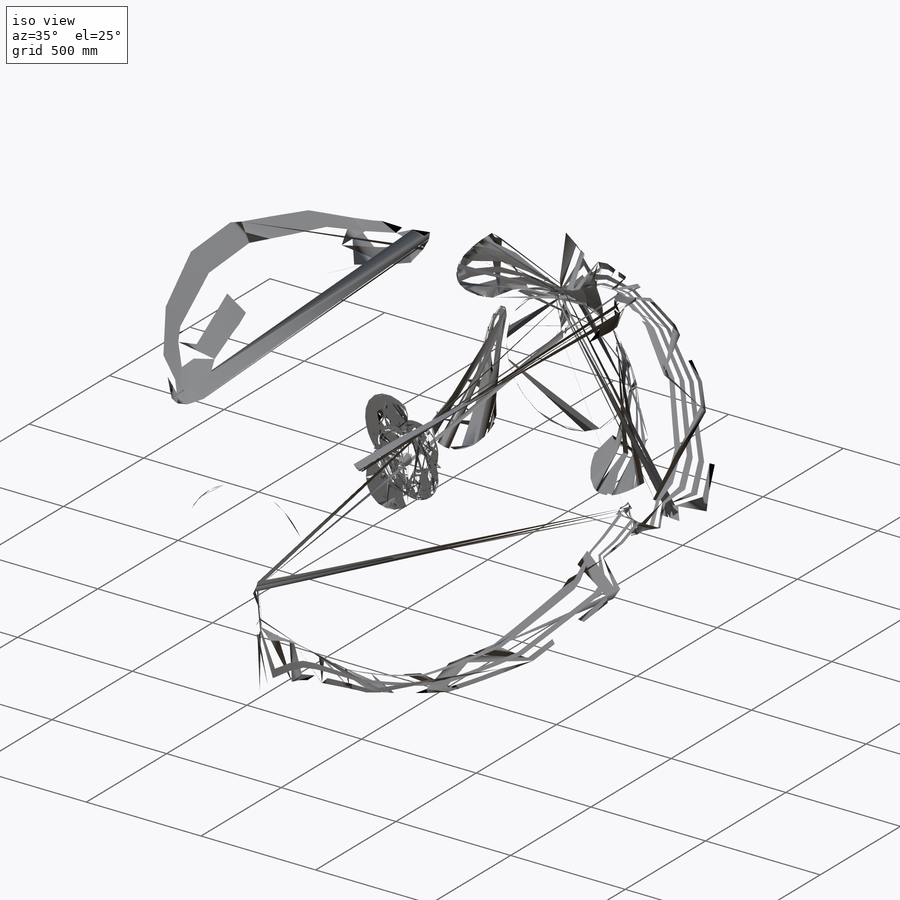
[diagram: iso view]
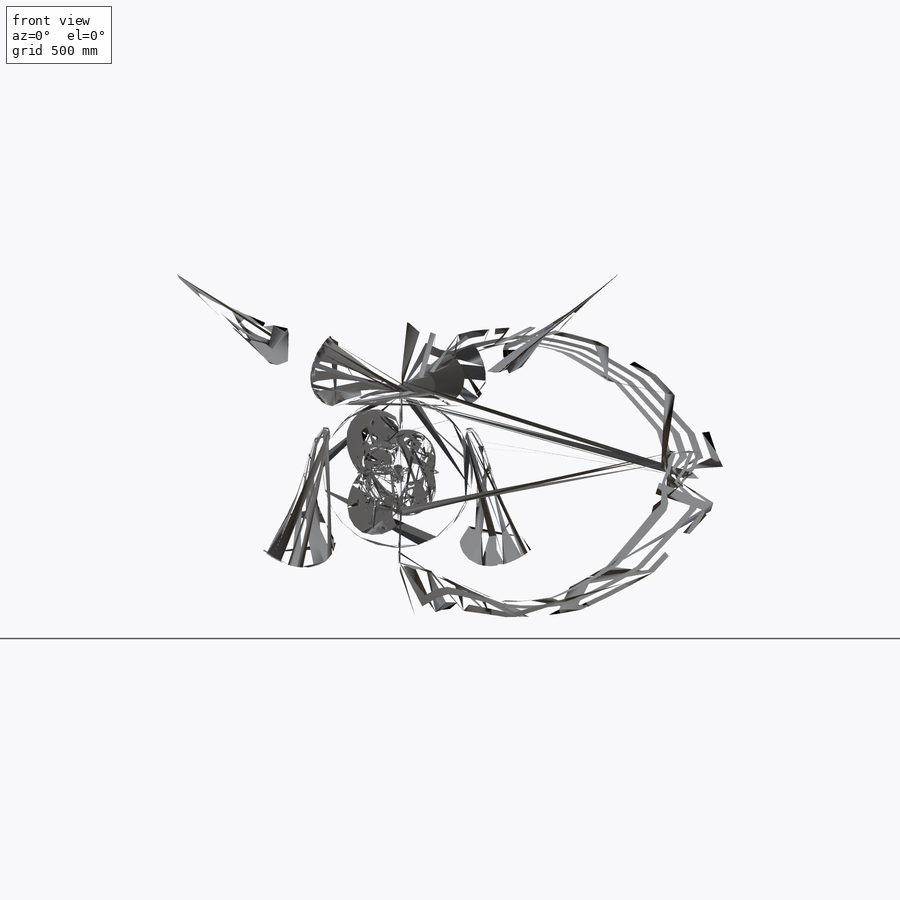
[diagram: front view]
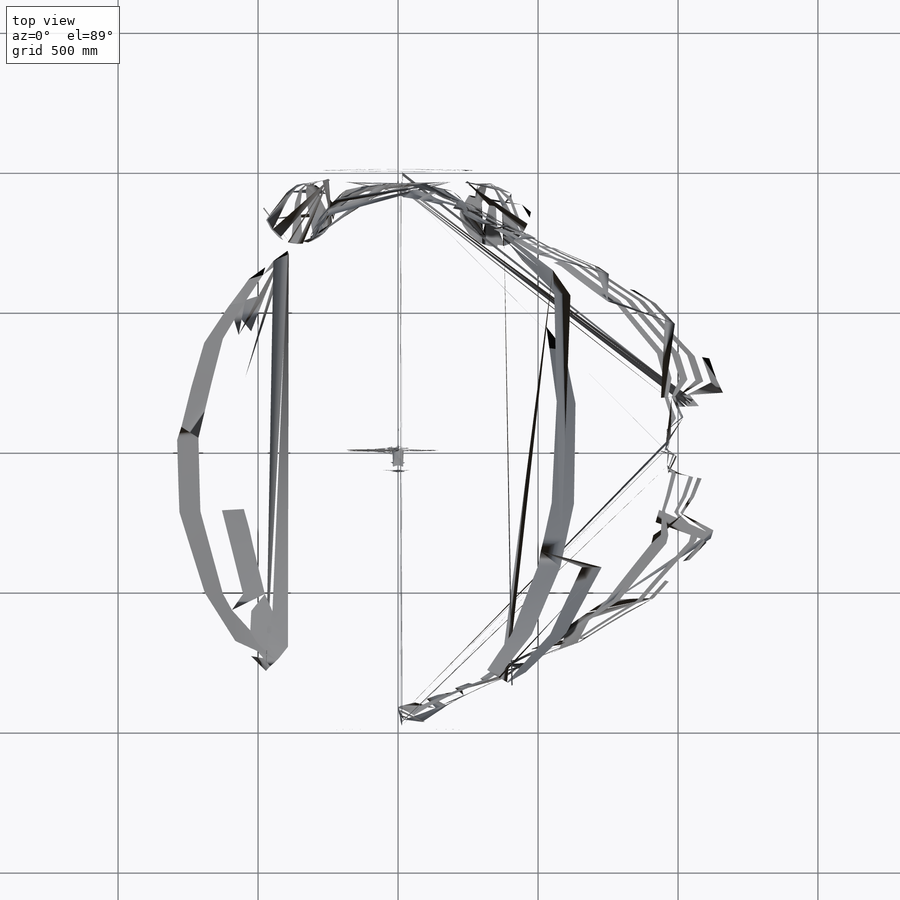
[diagram: top view]
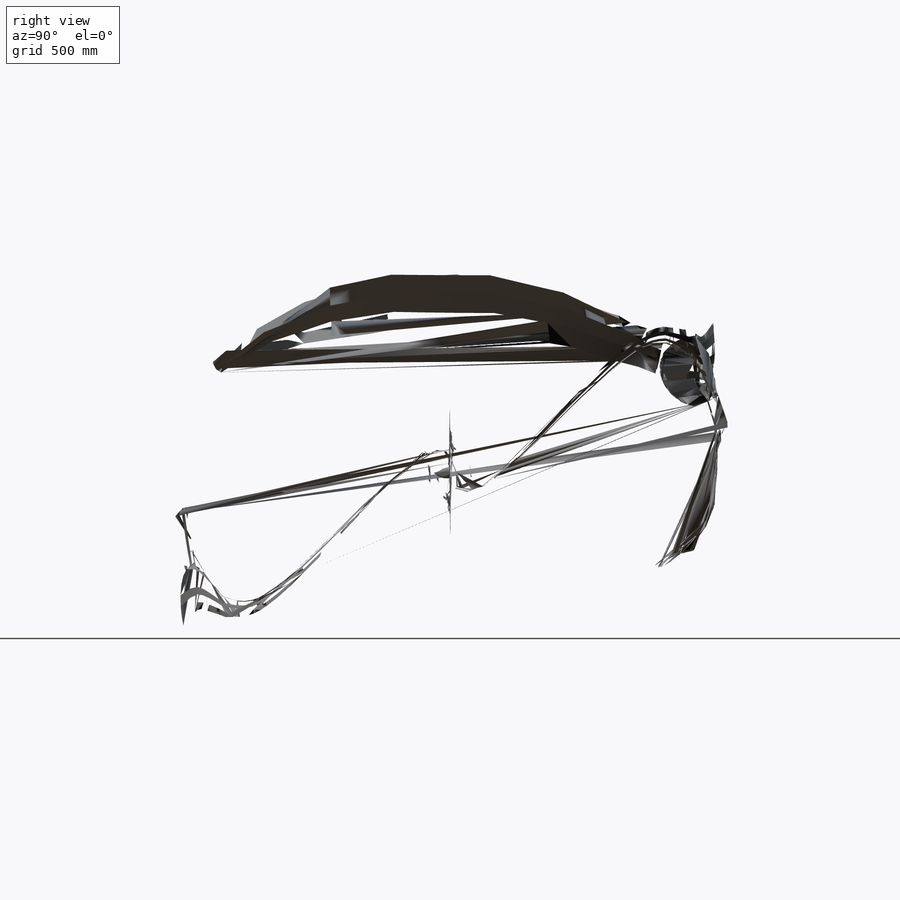
[diagram: right view]
SOLIDWORKS PART (.sldprt)
format: sldprt  version: not decoded by parser v0  size: 2,220,544 bytes
history: native  units: mm
features: sketch x17, fillet x9, plane x6, cut_extrude x3, extrude x3, material x1, cut_revolve x1, shell x1 (+13 scaffold rows collapsed)
feature tree (54):
  scaffold x13  (default folders/planes/origin — collapsed)
  material  "ABS"
  sketch  "Sketch2"  dims[D1=40.0mm]
  sketch  "Sketch3"  dims[c1.D1=75.0mm c1.D2=4.0mm c1.D3=40.0mm c1.D4=10.5mm c1.D5=20.0mm c1.D6=5.0mm c1.D7=35.0mm c1.D8=10.0mm c2.D6=5.0mm c2.D9=~5.470488mm c3.D9=45.0deg]
  plane  "Plane1"
  sketch  "Sketch4"  dims[c1.D2=2.0mm c1.D1=~26.35421mm c2.D1=90.0deg c3.D1=35.0mm c3.D2=38.0mm]
  plane  "Plane2"
  sketch  "Sketch5"  dims[D4=6.0mm D1=3.0mm D2=37.0mm D3=30.0mm]
  plane  "Plane3"  Offset=15mm
  sketch  "Sketch6"  dims[c1.D4=15.0mm c1.D2=10.0mm c1.D1=37.0mm c2.D2=0.5mm c2.D3=38.5mm c2.D5=4.0mm]
  sketch  "3DSketch3"
  sketch  "3DSketch4"
  sketch  "3DSketch5"
  sketch  "3DSketch6"
  sketch  "Sketch7"  dims[c1.D1=40.0mm c1.D2=40.0mm c2.D2=130.0deg]
  plane  "Plane4"
  plane  "Plane5"  Offset=66mm
  plane  "Plane6"
  sketch  "Sketch16"
  cut_revolve  "Cut-Revolve1"  Angle=360deg
  fillet  "Fillet13"  Radius=2mm
  sketch  "Sketch17"  dims[D3=7.0mm D1=32.0mm D2=32.0mm]
  cut_extrude  "Cut-Extrude5"  Depth=27mm
  fillet  "Fillet14"  Radius=1mm
  fillet  "Fillet15"  Radius=0.25mm
  shell  "Shell7"  Thickness=1.25mm
  sketch  "Sketch9"  dims[c1.D2=15.0mm c1.D3=6.0mm c1.D4=10.0mm c1.D5=1.75mm c1.D8=3.0mm c1.D1=2.0mm c1.D6=8.0mm c2.D6=20.0deg c2.D7=~0.513153mm c3.D7=30.0deg c4.D7=~7.028703mm c5.D7=20.0deg]
  extrude  "Boss-Extrude1"  Depth=4mm
  sketch  "Sketch10"  dims[D1=0.0mm]
  extrude  "Boss-Extrude2"  [1 undecoded]
  sketch  "Sketch11"  dims[D1=3.35mm]
  cut_extrude  "Cut-Extrude3"  [1 undecoded]
  sketch  "Sketch13"  dims[c1.D1=70.0mm c2.D1=~18.286339mm]
  cut_extrude  "Cut-Extrude4"  Depth=12.5mm
  fillet  "Fillet7"  Radius=0.5mm
  fillet  "Fillet8"  Radius=3mm
  fillet  "Fillet9"  Radius=1mm
  sketch  "Sketch14"  dims[c1.D3=4.0mm c1.D4=3.35mm c2.D3=4.25mm c2.D4=3.35mm c2.D5=3.35mm c2.D1=40.0mm c2.D2=40.0mm c3.D1=40.5mm c3.D2=40.5mm c3.D5=32.5mm]
  extrude  "Boss-Extrude3"  Depth=2mm
  fillet  "Fillet10"  Radius=1mm
  fillet  "Fillet11"  Radius=2mm
  fillet  "Fillet16"  Radius=1mm
decode coverage: 27 of 34 modeling features carry decoded parameters
note: ~ marks probable driven/reference dimensions
note: 2 parameter values undecoded
note: suppression state not decoded; provenance and decode notes live in map.json
